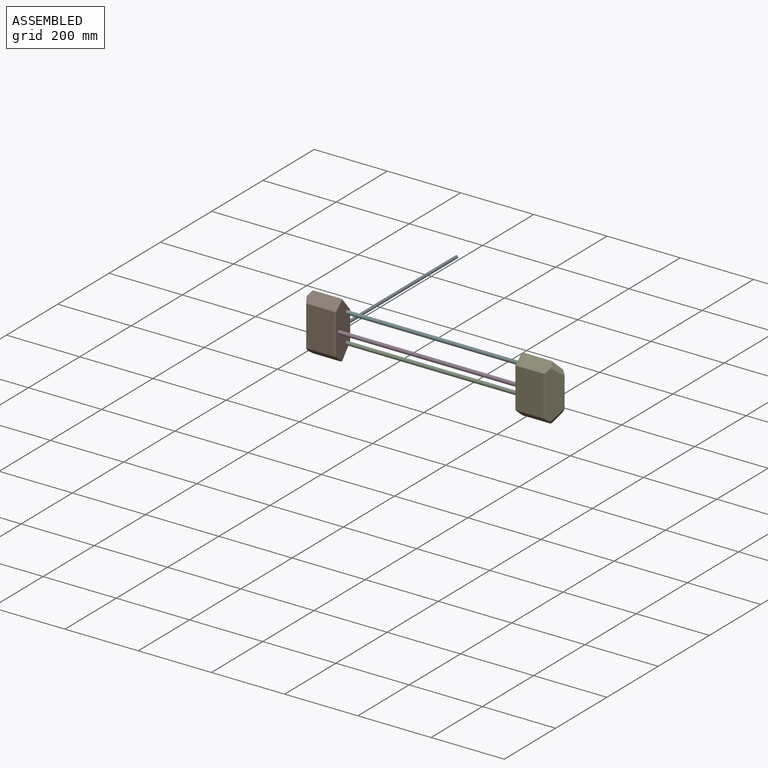
[diagram: assembled view]
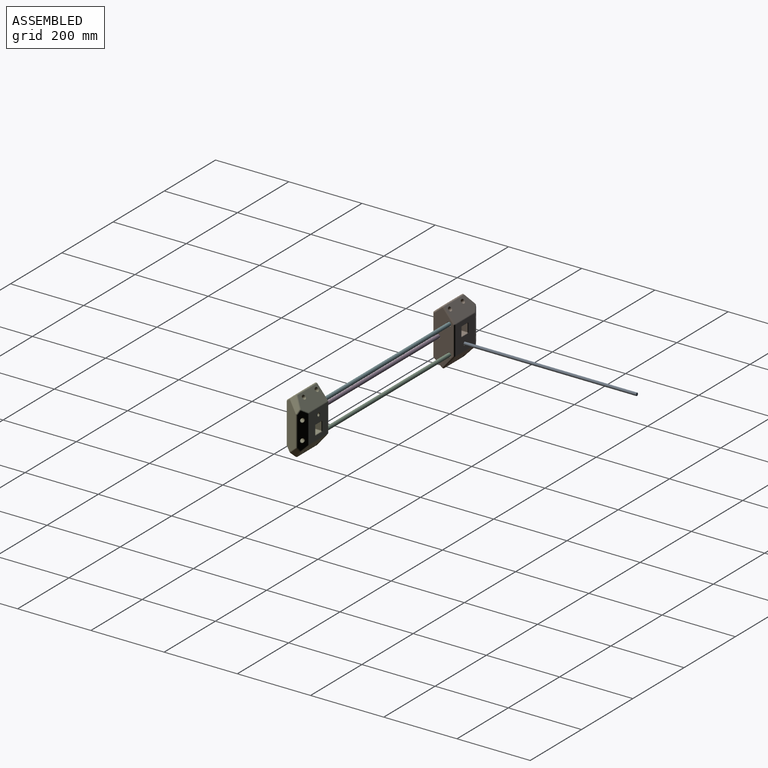
[diagram: assembled view, second angle]
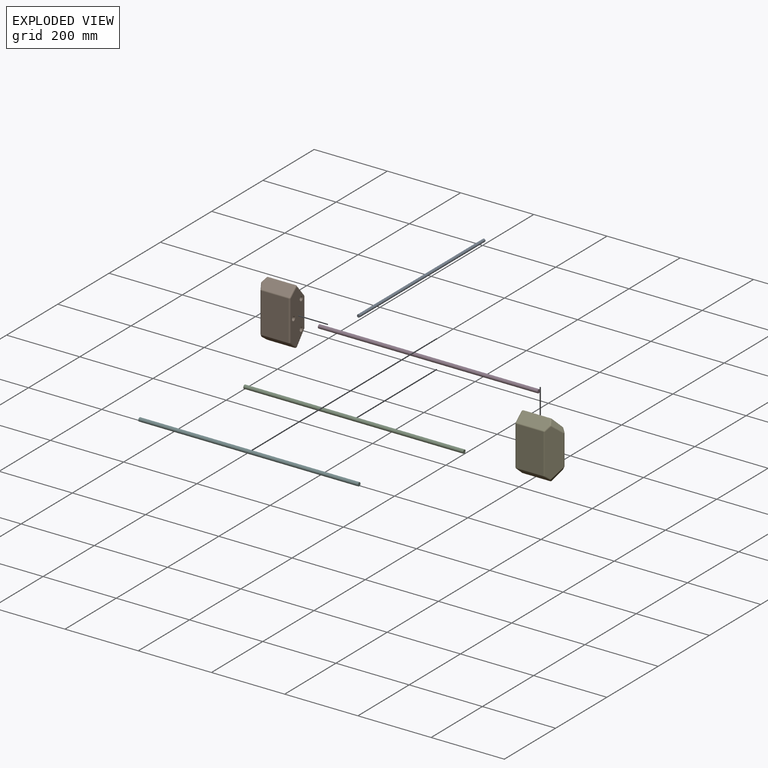
[diagram: exploded view]
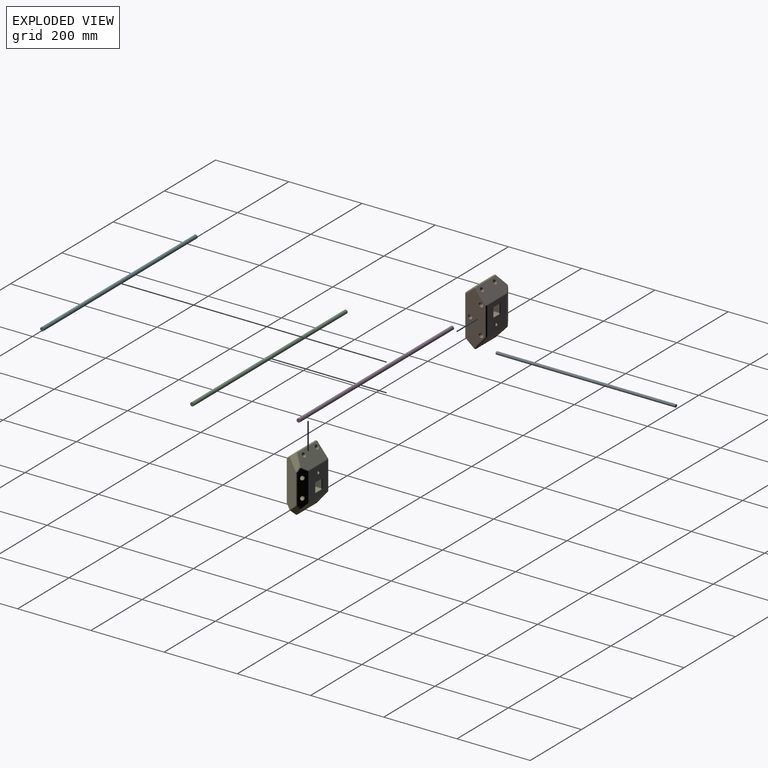
[diagram: exploded view, second angle]
ASSEMBLY  parts=6 mates=5
PART A: 3 faces, bbox 8x490x8 mm
  f0: cylinder r=4mm len=490mm, axis (0,-1,0), area 12315mm2, adj f1,f2
  f1: plane 8x8mm, normal (0,1,0), area 50.3mm2, adj f0
  f2: plane 8x8mm, normal (0,-1,0), area 50.3mm2, adj f0
PART B: 103 faces, bbox 104.5x154.5x60.2 mm
  f0: plane 77.09x74.93mm, normal (0,0,-1), area 4970mm2, adj f40,f50,f51,f52,f83,f84,f85,f86
  f1: plane 128.84x39.54mm, normal (-0.87,0,0.5), area 4998.1mm2, adj f54,f55,f67,f68,f76,f77
  f2: plane 90.83x34.69mm, normal (0,-0.64,-0.77), area 3526.9mm2, adj f51,f64,f65,f74,f75,f88,f91
  f3: plane 90.83x34.69mm, normal (0,0.64,-0.77), area 3526.9mm2, adj f36,f39,f40,f41,f42,f82,f94
  f4: plane 80.85x22.9mm, normal (0,0.77,0.64), area 2318mm2, adj f36,f43,f44,f55,f56
  f5: plane 80.85x22.9mm, normal (0,-0.77,0.64), area 2318mm2, adj f63,f69,f74,f77,f80
  f6: plane 98.97x21.59mm, normal (-0.5,0,-0.87), area 1984.2mm2, adj f41,f52,f53,f65,f66,f67,f81,f89
  f7: plane 108.04x73.69mm, normal (0,0,1), area 7961.4mm2, adj f56,f57,f68,f69
  f8: plane 146.46x52mm, normal (1,0,0), area 5827.3mm2, adj f39,f44,f50,f57,f63,f64,f87,f90
  f9: cylinder r=5mm len=29.41mm, axis (0,0.64,-0.77), area 942.5mm2, adj f10,f82
  f10: plane 10x7.66mm, normal (0,0.64,-0.77), area 78.5mm2, adj f9
  f11: cylinder r=5mm len=29.41mm, axis (0,0.64,-0.77), area 942.5mm2, adj f12,f94
  f12: plane 10x7.66mm, normal (0,0.64,-0.77), area 78.5mm2, adj f11
  f13: plane 32.25x30.43mm, normal (-0.83,0.56,0), area 440.8mm2, adj f42,f43,f53,f54
  f14: plane 32.25x30.43mm, normal (-0.83,-0.56,0), area 440.8mm2, adj f66,f75,f76,f80
  f15: cylinder r=5mm len=43.97mm, axis (-0.5,0,-0.87), area 1413.7mm2, adj f16,f89
  f16: plane 10x8.66mm, normal (-0.5,0,-0.87), area 78.5mm2, adj f15
  f17: cylinder r=5mm len=43.97mm, axis (-0.5,0,-0.87), area 1413.7mm2, adj f18,f81
  f18: plane 10x8.66mm, normal (-0.5,0,-0.87), area 78.5mm2, adj f17
  f19: cylinder r=5mm len=29.41mm, axis (0,-0.64,-0.77), area 942.5mm2, adj f20,f88
  f20: plane 10x7.66mm, normal (0,-0.64,-0.77), area 78.5mm2, adj f19
  f21: cylinder r=5mm len=29.41mm, axis (0,-0.64,-0.77), area 942.5mm2, adj f22,f91
  f22: plane 10x7.66mm, normal (0,-0.64,-0.77), area 78.5mm2, adj f21
  f23: cylinder r=5mm len=54mm, axis (1,0,0), area 1696.5mm2, adj f24,f87
  f24: plane 10x10mm, normal (1,0,0), area 78.5mm2, adj f23
  f25: cylinder r=5mm len=54mm, axis (1,0,0), area 1696.5mm2, adj f26,f92
  f26: plane 10x10mm, normal (1,0,0), area 78.5mm2, adj f25
  f27: cylinder r=5mm len=54mm, axis (1,0,0), area 1696.5mm2, adj f28,f90
  f28: plane 10x10mm, normal (1,0,0), area 78.5mm2, adj f27
  f29: plane 34x21mm, normal (1,0,0), area 714mm2, adj f33,f83,f95,f97
  f30: plane 34x21mm, normal (0,-1,0), area 714mm2, adj f33,f85,f97,f101
  f31: plane 34x21mm, normal (-1,0,0), area 714mm2, adj f33,f86,f99,f101
  f32: plane 34x21mm, normal (0,1,0), area 714mm2, adj f33,f84,f95,f99
  f33: plane 25x25mm, normal (0,0,-1), area 621.6mm2, adj f29,f30,f31,f32,f95,f97,f99,f101
  f34: cylinder r=4mm len=19mm, axis (0,0,-1), area 477.5mm2, adj f35,f93
  f35: plane 8x8mm, normal (0,0,-1), area 50.3mm2, adj f34
  f36: cylinder r=4mm len=74.96mm, axis (-1,0,0), area 471mm2, adj f3,f4,f37,f38
  f37: sphere r=4mm, area 14mm2, adj f36,f42,f43
  f38: sphere r=4mm, area 25.1mm2, adj f36,f39,f44
  f39: cylinder r=4mm len=37.26mm, axis (0,-0.77,-0.64), area 284.5mm2, adj f3,f8,f38,f45
  f40: cylinder r=4mm len=74.93mm, axis (1,0,0), area 209.2mm2, adj f0,f3,f45,f46
  f41: cylinder r=4mm len=17.9mm, axis (-0.74,0.51,0.43), area 72.3mm2, adj f3,f6,f46,f47
  f42: cylinder r=4mm len=24.45mm, axis (0.46,0.68,0.57), area 167.9mm2, adj f3,f13,f37,f47
  f43: cylinder r=4mm len=13.07mm, axis (-0.39,-0.59,0.7), area 67.5mm2, adj f4,f13,f37,f48
  f44: cylinder r=4mm len=25.47mm, axis (0,0.64,-0.77), area 187.8mm2, adj f4,f8,f38,f49
  f45: sphere r=4mm, area 11.2mm2, adj f39,f40,f50
  f46: sphere r=4mm, area 3.1mm2, adj f40,f41,f52
  f47: sphere r=4mm, area 8.7mm2, adj f41,f42,f53
  f48: sphere r=4mm, area 8mm2, adj f43,f54,f55
  f49: sphere r=4mm, area 14mm2, adj f44,f56,f57
  f50: cylinder r=4mm len=77.09mm, axis (0,-1,0), area 484.4mm2, adj f0,f8,f45,f58
  f51: cylinder r=4mm len=74.93mm, axis (1,0,0), area 209.2mm2, adj f0,f2,f58,f59
  f52: cylinder r=4mm len=77.09mm, axis (0,-1,0), area 161.5mm2, adj f0,f6,f46,f59
  f53: cylinder r=4mm len=10.73mm, axis (0.53,0.79,-0.31), area 49.1mm2, adj f6,f13,f47,f60
  f54: cylinder r=4mm len=29.14mm, axis (-0.4,-0.6,-0.69), area 120.1mm2, adj f1,f13,f48,f60
  f55: cylinder r=4mm len=13.46mm, axis (0.4,-0.59,0.7), area 88mm2, adj f1,f4,f48,f61
  f56: cylinder r=4mm len=73.69mm, axis (1,0,0), area 257.2mm2, adj f4,f7,f49,f61
  f57: cylinder r=4mm len=108.04mm, axis (0,1,0), area 678.8mm2, adj f7,f8,f49,f62
  f58: sphere r=4mm, area 11.2mm2, adj f50,f51,f64
  f59: sphere r=4mm, area 3.1mm2, adj f51,f52,f65
  f60: sphere r=4mm, area 8.1mm2, adj f53,f54,f67
  f61: sphere r=4mm, area 8.4mm2, adj f55,f56,f68
  f62: sphere r=4mm, area 14mm2, adj f57,f63,f69
  f63: cylinder r=4mm len=25.47mm, axis (0,0.64,0.77), area 187.8mm2, adj f5,f8,f62,f70
  f64: cylinder r=4mm len=37.26mm, axis (0,-0.77,0.64), area 284.5mm2, adj f2,f8,f58,f70
  f65: cylinder r=4mm len=17.9mm, axis (0.74,0.51,-0.43), area 72.3mm2, adj f2,f6,f59,f71
  f66: cylinder r=4mm len=10.73mm, axis (-0.53,0.79,0.31), area 49.1mm2, adj f6,f14,f71,f72
  f67: cylinder r=4mm len=81.95mm, axis (0,-1,0), area 514.9mm2, adj f1,f6,f60,f72
  f68: cylinder r=4mm len=108.04mm, axis (0,-1,0), area 452.5mm2, adj f1,f7,f61,f73
  f69: cylinder r=4mm len=73.69mm, axis (-1,0,0), area 257.2mm2, adj f5,f7,f62,f73
  f70: sphere r=4mm, area 25.1mm2, adj f63,f64,f74
  f71: sphere r=4mm, area 8.7mm2, adj f65,f66,f75
  f72: sphere r=4mm, area 8.1mm2, adj f66,f67,f76
  f73: sphere r=4mm, area 8.4mm2, adj f68,f69,f77
  f74: cylinder r=4mm len=74.96mm, axis (1,0,0), area 471mm2, adj f2,f5,f70,f78
  f75: cylinder r=4mm len=24.45mm, axis (-0.46,0.68,-0.57), area 167.9mm2, adj f2,f14,f71,f78
  f76: cylinder r=4mm len=29.14mm, axis (0.4,-0.6,0.69), area 120.1mm2, adj f1,f14,f72,f79
  f77: cylinder r=4mm len=13.46mm, axis (-0.4,-0.59,-0.7), area 88mm2, adj f1,f5,f73,f79
  f78: sphere r=4mm, area 14mm2, adj f74,f75,f80
  f79: sphere r=4mm, area 8mm2, adj f76,f77,f80
  f80: cylinder r=4mm len=13.07mm, axis (0.39,-0.59,-0.7), area 67.5mm2, adj f5,f14,f78,f79
  f81: cone r=5mm half-angle=45deg, axis (-0.5,0,-0.87), area 48.9mm2, adj f6,f17
  f82: cone r=5mm half-angle=45deg, axis (0,0.64,-0.77), area 48.9mm2, adj f3,f9
  f83: plane 24.17x1.07mm, normal (0.71,0,-0.71), area 32.8mm2, adj f0,f29,f95,f96,f97,f98
  f84: plane 24.17x1.07mm, normal (0,0.71,-0.71), area 32.8mm2, adj f0,f32,f95,f96,f99,f100
  f85: plane 24.17x1.07mm, normal (0,-0.71,-0.71), area 32.8mm2, adj f0,f30,f97,f98,f101,f102
  f86: plane 24.17x1.07mm, normal (-0.71,0,-0.71), area 32.8mm2, adj f0,f31,f99,f100,f101,f102
  f87: cone r=5mm half-angle=45deg, axis (1,0,0), area 48.9mm2, adj f8,f23
  f88: cone r=5mm half-angle=45deg, axis (0,-0.64,-0.77), area 48.9mm2, adj f2,f19
  f89: cone r=5mm half-angle=45deg, axis (-0.5,0,-0.87), area 48.9mm2, adj f6,f15
  f90: cone r=5mm half-angle=45deg, axis (1,0,0), area 48.9mm2, adj f8,f27
  f91: cone r=5mm half-angle=45deg, axis (0,-0.64,-0.77), area 48.9mm2, adj f2,f21
  f92: cone r=5mm half-angle=45deg, axis (1,0,0), area 48.9mm2, adj f8,f25
  f93: cone r=4mm half-angle=45deg, axis (0,0,-1), area 40mm2, adj f0,f34
  f94: cone r=5mm half-angle=45deg, axis (0,0.64,-0.77), area 48.9mm2, adj f3,f11
  f95: cylinder r=2mm len=34mm, axis (0,0,1), area 106.5mm2, adj f29,f32,f33,f83,f84,f96
  f96: cylinder r=2mm len=2.7mm, axis (-0.58,-0.58,-0.58), area 4.2mm2, adj f0,f83,f84,f95
  f97: cylinder r=2mm len=34mm, axis (0,0,-1), area 106.5mm2, adj f29,f30,f33,f83,f85,f98
  f98: cylinder r=2mm len=2.7mm, axis (-0.58,0.58,-0.58), area 4.2mm2, adj f0,f83,f85,f97
  f99: cylinder r=2mm len=34mm, axis (0,0,1), area 106.5mm2, adj f31,f32,f33,f84,f86,f100
  f100: cylinder r=2mm len=2.7mm, axis (0.58,-0.58,-0.58), area 4.2mm2, adj f0,f84,f86,f99
  f101: cylinder r=2mm len=34mm, axis (0,0,-1), area 106.5mm2, adj f30,f31,f33,f85,f86,f102
  f102: cylinder r=2mm len=2.7mm, axis (0.58,0.58,-0.58), area 4.2mm2, adj f0,f85,f86,f101
PART C: 3 faces, bbox 10x600x10 mm
  f0: cylinder r=5mm len=600mm, axis (0,-1,0), area 18849.6mm2, adj f1,f2
  f1: plane 10x10mm, normal (0,1,0), area 78.5mm2, adj f0
  f2: plane 10x10mm, normal (0,-1,0), area 78.5mm2, adj f0
PART D: same geometry as C
PART E: same geometry as B
PART F: same geometry as C
PLACE A rot(axis=(1,0,0),180deg) t=(290.57,744.8,445.39)mm
PLACE B rot(axis=(1,0,0),90deg) t=(208.01,261.47,461.66)mm
PLACE C rot(axis=(0.71,-0.71,0),180deg) t=(833.01,235.5,429.3)mm
PLACE D rot(axis=(0.71,-0.71,0),180deg) t=(833.01,205.5,467.19)mm
PLACE E rot(axis=(0,-0.71,0.71),180deg) t=(858.01,261.47,461.66)mm
PLACE F rot(axis=(0.71,0.71,0),180deg) t=(233.01,284.1,505.07)mm
MATE fastened A.f0 <-> B.f34  axis (0,-1,0) through (248.01,254.8,440.66)mm
MATE fastened C.f0 <-> E.f23  axis (1,0,0) through (833.01,259.8,423.77)mm
MATE fastened D.f0 <-> E.f25  axis (1,0,0) through (833.01,229.8,461.66)mm
MATE fastened E.f27 <-> F.f0  axis (-1,0,0) through (833.01,259.8,499.54)mm
MATE fastened D.f0 <-> B.f25  axis (-1,0,0) through (233.01,229.8,461.66)mm
